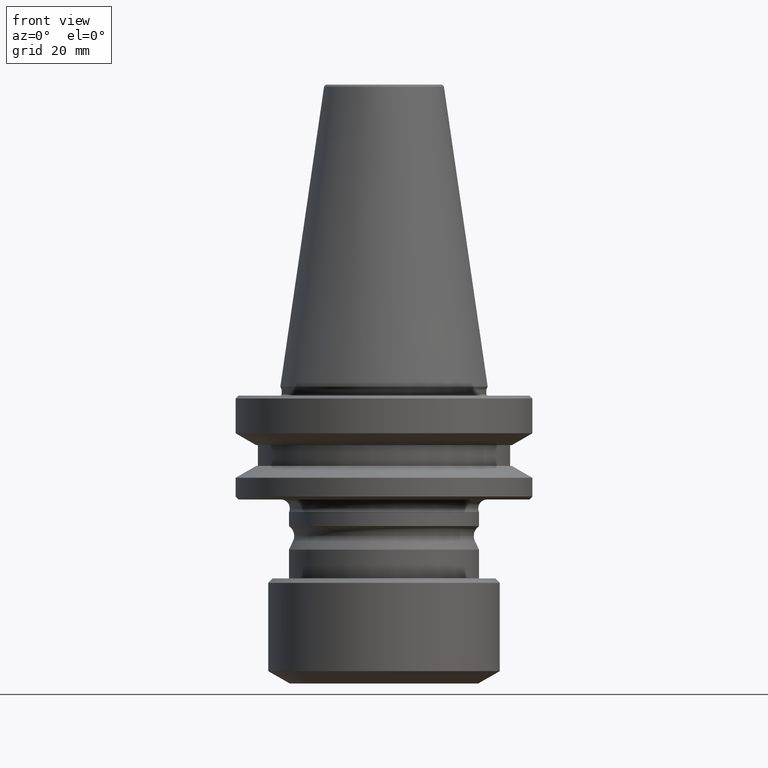
[diagram: clean part render]
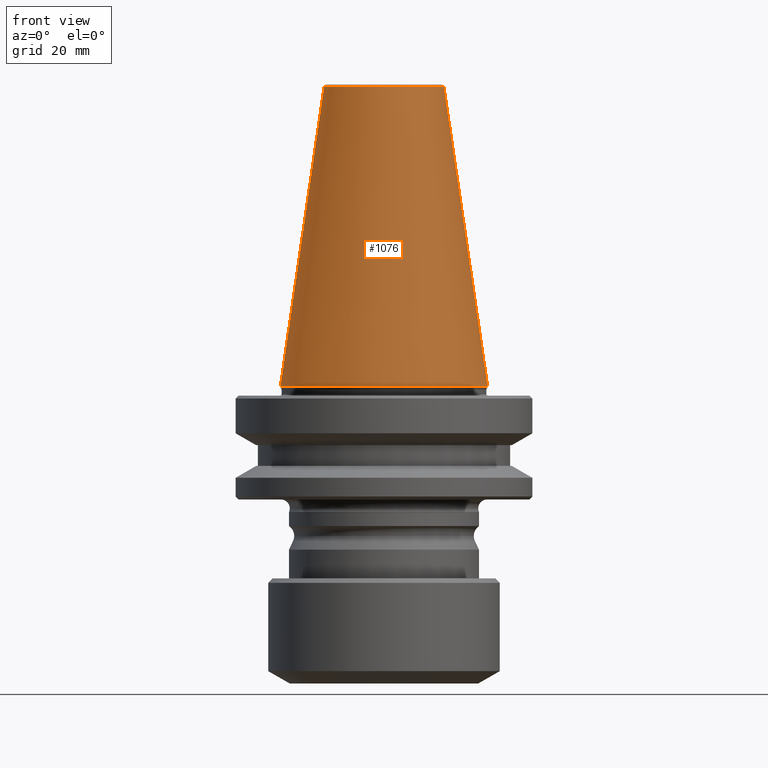
[diagram: same view with one face highlighted and labeled with its STEP entity id]
A machine part, front view. The second image highlights one B-rep face of the part: STEP entity #1076.
In plain terms, the highlighted conical surface has half-angle 8.297 deg.
Its self-contained STEP definition (entity closure, byte-faithful):
#8 = CARTESIAN_POINT ( 'NONE',  ( 34.92499999999964900, 4.277078946022088300E-015, 0.0000000000000000000 ) ) ;
#23 = VERTEX_POINT ( 'NONE', #483 ) ;
#36 = CONICAL_SURFACE ( 'NONE', #244, 34.92499999999964900, 0.1448138426689054300 ) ;
#44 = DIRECTION ( 'NONE',  ( -0.0000000000000000000, -0.0000000000000000000, 1.000000000000000000 ) ) ;
#82 = CIRCLE ( 'NONE', #110, 20.20381645192170700 ) ;
#110 = AXIS2_PLACEMENT_3D ( 'NONE', #355, #44, #346 ) ;
#147 = DIRECTION ( 'NONE',  ( -0.0000000000000000000, -0.0000000000000000000, 1.000000000000000000 ) ) ;
#154 = DIRECTION ( 'NONE',  ( -0.1443082234293906200, 0.0000000000000000000, -0.9895327870518758600 ) ) ;
#192 = VERTEX_POINT ( 'NONE', #1195 ) ;
#239 = EDGE_CURVE ( 'NONE', #610, #23, #82, .T. ) ;
#243 = LINE ( 'NONE', #8, #734 ) ;
#244 = AXIS2_PLACEMENT_3D ( 'NONE', #1289, #372, #1182 ) ;
#263 = ORIENTED_EDGE ( 'NONE', *, *, #239, .F. ) ;
#308 = CARTESIAN_POINT ( 'NONE',  ( -34.92499999999964900, 4.277078946022088300E-015, 0.0000000000000000000 ) ) ;
#342 = VERTEX_POINT ( 'NONE', #308 ) ;
#346 = DIRECTION ( 'NONE',  ( 1.000000000000000000, 0.0000000000000000000, 0.0000000000000000000 ) ) ;
#355 = CARTESIAN_POINT ( 'NONE',  ( 0.0000000000000000000, 0.0000000000000000000, 100.9443082234284800 ) ) ;
#372 = DIRECTION ( 'NONE',  ( 0.0000000000000000000, 0.0000000000000000000, -1.000000000000000000 ) ) ;
#422 = EDGE_LOOP ( 'NONE', ( #1283, #263, #815, #432 ) ) ;
#432 = ORIENTED_EDGE ( 'NONE', *, *, #484, .T. ) ;
#483 = CARTESIAN_POINT ( 'NONE',  ( 20.20381645192170700, 3.375666430431372200E-015, 100.9443082234284800 ) ) ;
#484 = EDGE_CURVE ( 'NONE', #342, #192, #1055, .T. ) ;
#610 = VERTEX_POINT ( 'NONE', #1356 ) ;
#613 = VECTOR ( 'NONE', #154, 1000.000000000000000 ) ;
#633 = DIRECTION ( 'NONE',  ( 0.1443082234293906200, 1.767266039134443000E-017, -0.9895327870518758600 ) ) ;
#734 = VECTOR ( 'NONE', #633, 1000.000000000000000 ) ;
#815 = ORIENTED_EDGE ( 'NONE', *, *, #848, .T. ) ;
#848 = EDGE_CURVE ( 'NONE', #610, #342, #1246, .T. ) ;
#912 = CARTESIAN_POINT ( 'NONE',  ( -34.92499999999964900, 0.0000000000000000000, 0.0000000000000000000 ) ) ;
#953 = FACE_OUTER_BOUND ( 'NONE', #422, .T. ) ;
#1006 = AXIS2_PLACEMENT_3D ( 'NONE', #1165, #147, #1181 ) ;
#1055 = CIRCLE ( 'NONE', #1006, 34.92499999999964900 ) ;
#1076 = ADVANCED_FACE ( 'NONE', ( #953 ), #36, .T. ) ;
#1165 = CARTESIAN_POINT ( 'NONE',  ( 0.0000000000000000000, 0.0000000000000000000, 0.0000000000000000000 ) ) ;
#1181 = DIRECTION ( 'NONE',  ( 1.000000000000000000, 0.0000000000000000000, 0.0000000000000000000 ) ) ;
#1182 = DIRECTION ( 'NONE',  ( -1.000000000000000000, 0.0000000000000000000, 0.0000000000000000000 ) ) ;
#1195 = CARTESIAN_POINT ( 'NONE',  ( 34.92499999999964900, 0.0000000000000000000, 0.0000000000000000000 ) ) ;
#1246 = LINE ( 'NONE', #912, #613 ) ;
#1264 = EDGE_CURVE ( 'NONE', #23, #192, #243, .T. ) ;
#1283 = ORIENTED_EDGE ( 'NONE', *, *, #1264, .F. ) ;
#1289 = CARTESIAN_POINT ( 'NONE',  ( 0.0000000000000000000, 0.0000000000000000000, 0.0000000000000000000 ) ) ;
#1356 = CARTESIAN_POINT ( 'NONE',  ( -20.20381645192170700, 0.0000000000000000000, 100.9443082234284800 ) ) ;